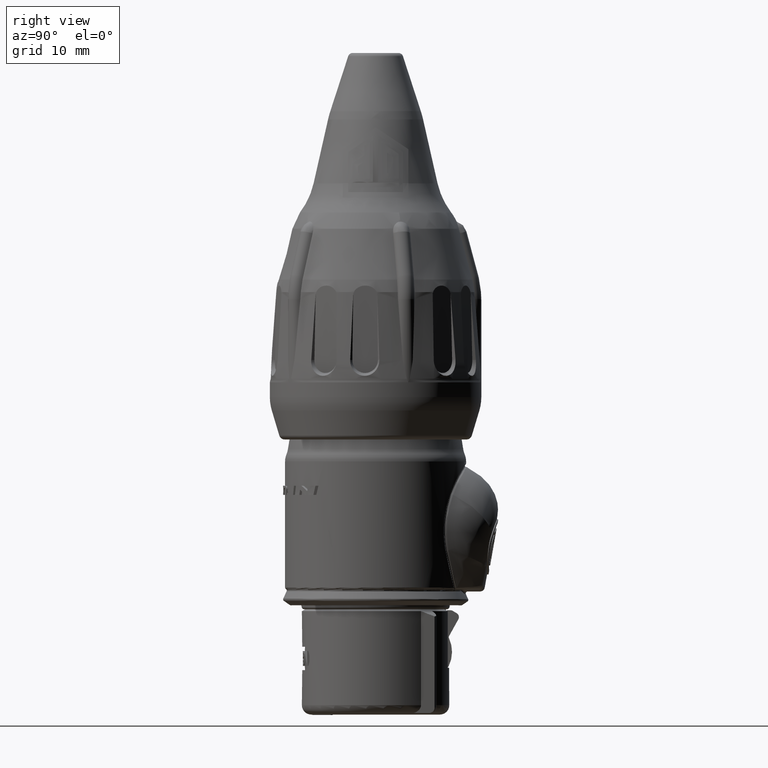
[diagram: clean part render]
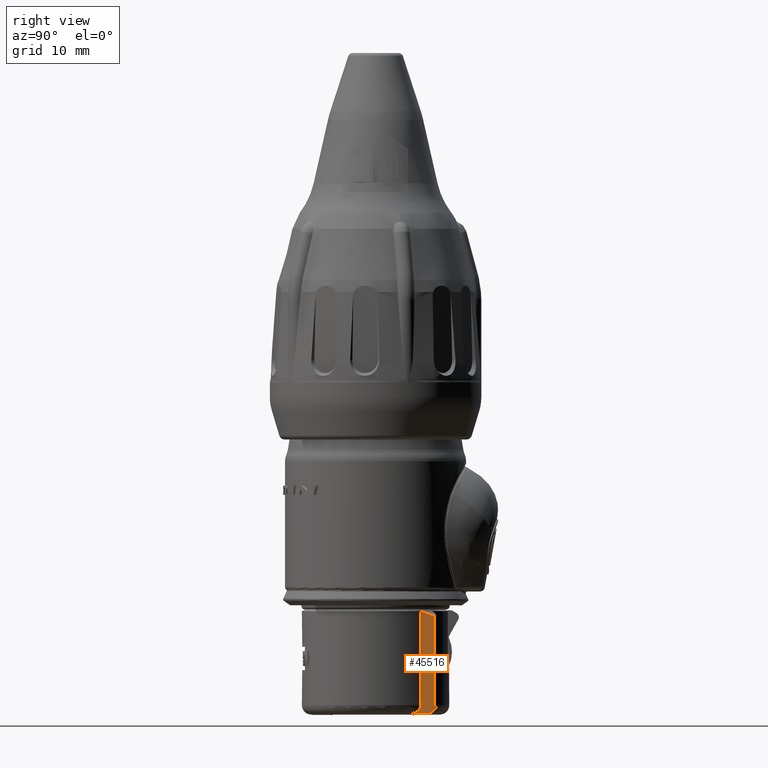
[diagram: same view with one face highlighted and labeled with its STEP entity id]
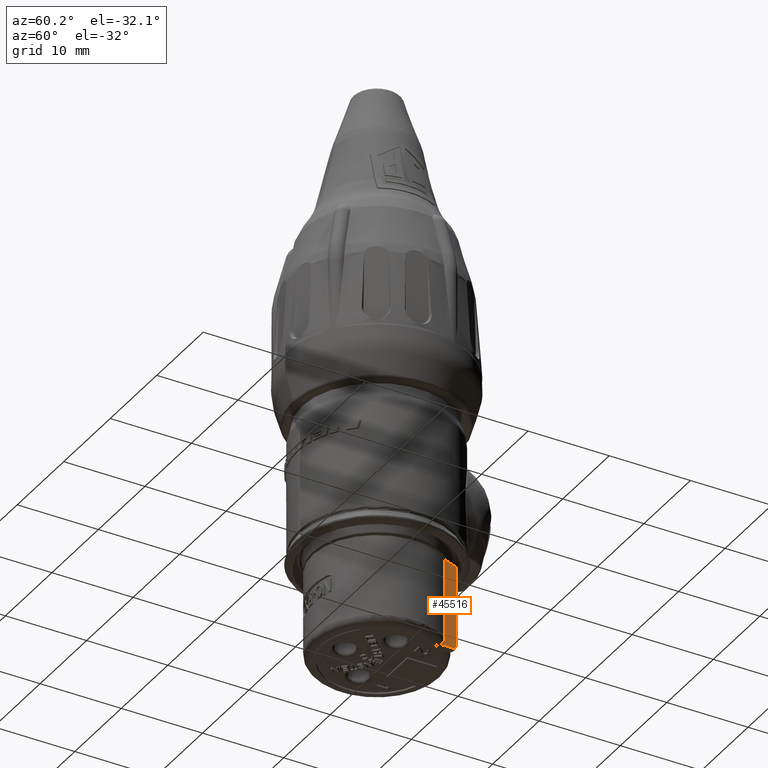
[diagram: same view with one face highlighted and labeled with its STEP entity id]
A machine part, right view. The second image highlights one B-rep face of the part: STEP entity #45516.
A second angle (auxiliary view) of the same face is appended — the face is thin or edge-on in the first view.
In plain terms, the highlighted planar face has unit normal (1, 0, 0).
Its self-contained STEP definition (entity closure, byte-faithful):
#13397=CARTESIAN_POINT('',(6.2E0,5.727564927611E0,-1.335E1));
#13398=DIRECTION('',(-1.E0,0.E0,0.E0));
#13399=DIRECTION('',(0.E0,1.E0,-2.439635836513E-14));
#13400=AXIS2_PLACEMENT_3D('',#13397,#13398,#13399);
#13412=DIRECTION('',(0.E0,0.E0,1.E0));
#13413=VECTOR('',#13412,1.005048094716E1);
#13414=CARTESIAN_POINT('',(6.2E0,4.855473715303E0,-1.31E1));
#13415=LINE('',#13414,#13413);
#13416=CARTESIAN_POINT('',(6.2E0,4.855473715303E0,-3.049519052838E0));
#13417=CARTESIAN_POINT('',(6.2E0,5.082184537754E0,-3.130222608622E0));
#13418=CARTESIAN_POINT('',(6.2E0,5.551369650769E0,-3.304267232766E0));
#13419=CARTESIAN_POINT('',(6.2E0,6.051941004923E0,-3.503994304955E0));
#13420=CARTESIAN_POINT('',(6.2E0,6.310063942526E0,-3.610295560092E0));
#13422=DIRECTION('',(0.E0,0.E0,-1.E0));
#13423=VECTOR('',#13422,9.739704439908E0);
#13424=CARTESIAN_POINT('',(6.2E0,6.310063942526E0,-3.610295560092E0));
#13425=LINE('',#13424,#13423);
#13426=DIRECTION('',(0.E0,-1.E0,0.E0));
#13427=VECTOR('',#13426,1.634835385366E0);
#13428=CARTESIAN_POINT('',(6.2E0,5.727564927611E0,-1.393249901491E1));
#13429=LINE('',#13428,#13427);
#13455=CARTESIAN_POINT('',(6.2E0,4.855473715303E0,-1.31E1));
#13456=CARTESIAN_POINT('',(6.2E0,4.855473715303E0,-1.316534665582E1));
#13457=CARTESIAN_POINT('',(6.2E0,4.835699973593E0,-1.329426024301E1));
#13458=CARTESIAN_POINT('',(6.2E0,4.737844236591E0,-1.349100240635E1));
#13459=CARTESIAN_POINT('',(6.2E0,4.580304017806E0,-1.366505320152E1));
#13460=CARTESIAN_POINT('',(6.2E0,4.363628668321E0,-1.381729770059E1));
#13461=CARTESIAN_POINT('',(6.2E0,4.188631316816E0,-1.389733854990E1));
#13462=CARTESIAN_POINT('',(6.2E0,4.092729542245E0,-1.393249901491E1));
#13464=CARTESIAN_POINT('',(6.2E0,4.092729542245E0,-1.393249901491E1));
#17977=CARTESIAN_POINT('',(6.2E0,4.855473715303E0,-1.31E1));
#17978=VERTEX_POINT('',#17977);
#17979=VERTEX_POINT('',#13464);
#17980=CARTESIAN_POINT('',(6.2E0,6.310063942526E0,-1.335E1));
#17981=CARTESIAN_POINT('',(6.2E0,5.727564927611E0,-1.393249901491E1));
#17982=VERTEX_POINT('',#17980);
#17983=VERTEX_POINT('',#17981);
#18258=CARTESIAN_POINT('',(6.2E0,4.855473715303E0,-3.049519052838E0));
#18259=VERTEX_POINT('',#18258);
#18260=CARTESIAN_POINT('',(6.2E0,6.310063942526E0,-3.610295560092E0));
#18261=VERTEX_POINT('',#18260);
#45501=CARTESIAN_POINT('',(6.2E0,5.727564927611E0,-1.393249901491E1));
#45502=DIRECTION('',(1.E0,0.E0,0.E0));
#45503=DIRECTION('',(0.E0,0.E0,1.E0));
#45504=AXIS2_PLACEMENT_3D('',#45501,#45502,#45503);
#45505=PLANE('',#45504);
#45506=ORIENTED_EDGE('',*,*,#20966,.T.);
#45507=ORIENTED_EDGE('',*,*,#22685,.T.);
#45509=ORIENTED_EDGE('',*,*,#45508,.T.);
#45510=ORIENTED_EDGE('',*,*,#45491,.T.);
#45511=ORIENTED_EDGE('',*,*,#45481,.T.);
#45513=ORIENTED_EDGE('',*,*,#45512,.F.);
#45514=EDGE_LOOP('',(#45506,#45507,#45509,#45510,#45511,#45513));
#45515=FACE_OUTER_BOUND('',#45514,.F.);
#13401=CIRCLE('',#13400,5.824990149149E-1);
#13421=B_SPLINE_CURVE_WITH_KNOTS('',3,(#13416,#13417,#13418,#13419,#13420),
.UNSPECIFIED.,.F.,.F.,(4,1,4),(0.E0,5.E-1,1.E0),.UNSPECIFIED.);
#13463=B_SPLINE_CURVE_WITH_KNOTS('',3,(#13455,#13456,#13457,#13458,#13459,
#13460,#13461,#13462),.UNSPECIFIED.,.F.,.F.,(4,1,1,1,1,4),(0.E0,2.E-1,4.E-1,
6.E-1,8.E-1,1.E0),.UNSPECIFIED.);
#20966=EDGE_CURVE('',#17978,#18259,#13415,.T.);
#22685=EDGE_CURVE('',#18259,#18261,#13421,.T.);
#45481=EDGE_CURVE('',#17983,#17979,#13429,.T.);
#45491=EDGE_CURVE('',#17982,#17983,#13401,.T.);
#45508=EDGE_CURVE('',#18261,#17982,#13425,.T.);
#45512=EDGE_CURVE('',#17978,#17979,#13463,.T.);
#45516=ADVANCED_FACE('',(#45515),#45505,.T.);